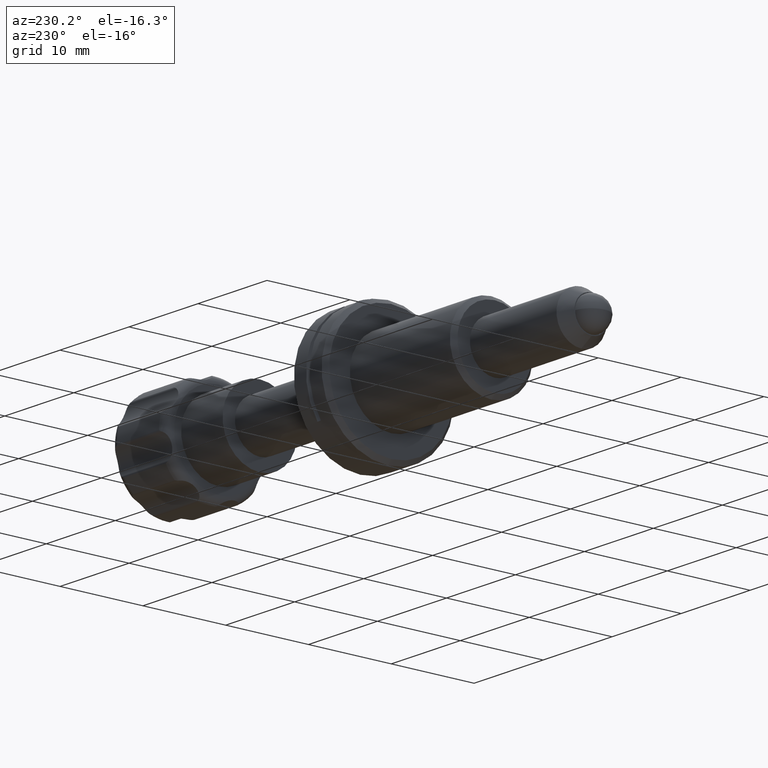
[diagram: clean part render]
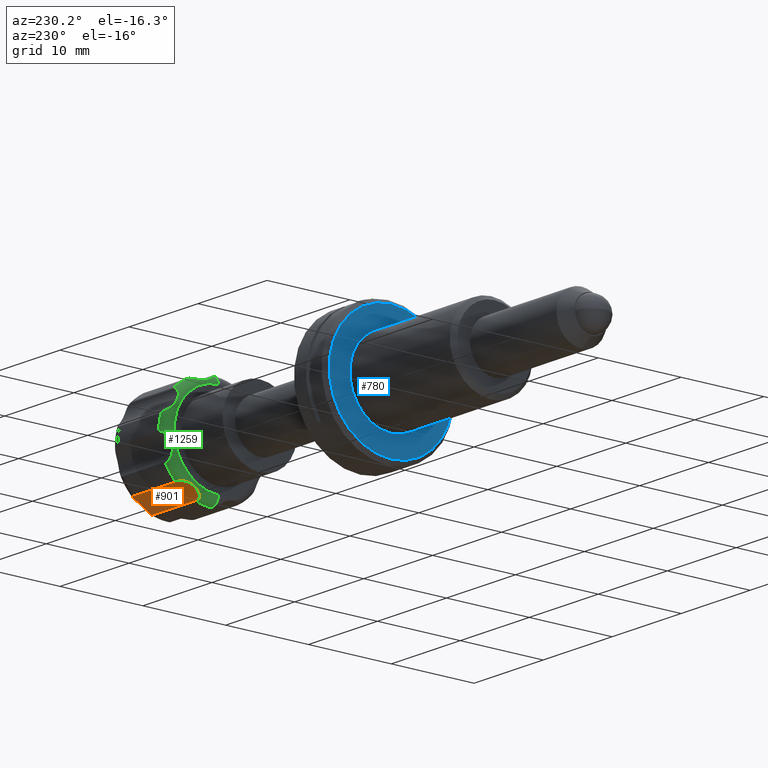
[diagram: same view with three faces highlighted in distinct colors, each labeled with its STEP entity id]
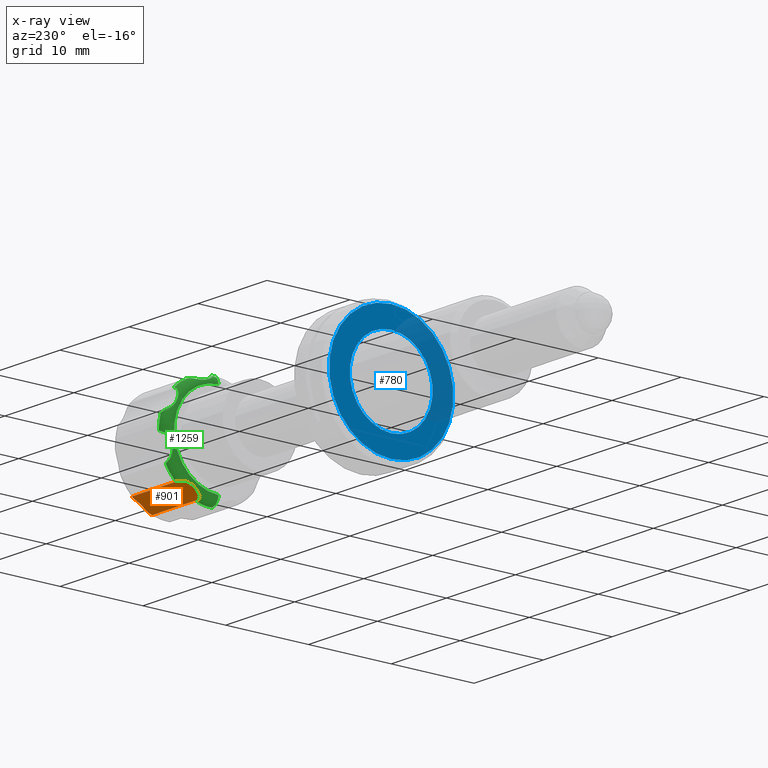
[diagram: x-ray of the same camera — body ghosted, the three highlighted faces saturated]
A machine part, auxiliary view with three faces highlighted in distinct colors.
The next image is the same camera in x-ray (body ghosted, the three faces saturated) — at least one of them is partly hidden behind the body in this view.
Their STEP definitions:

[orange] entity #901 — the highlighted cylindrical surface (edge-blend (fillet) strip) has radius 2.75 mm, axis along (-1, 0, 0).
#26 = DIRECTION ( 'NONE',  ( -1.000000000000000000, 3.443357432102106769E-17, 2.211074569426361915E-16 ) ) ;
#103 = CARTESIAN_POINT ( 'NONE',  ( 34.96648861014485732, 2.760489039169645942, -5.045806486406156921 ) ) ;
#155 = CARTESIAN_POINT ( 'NONE',  ( 27.44775316104480822, 1.960155811109879576, -5.834174106017194106 ) ) ;
#238 = CARTESIAN_POINT ( 'NONE',  ( 35.09076659436070145, 4.245051004761054791, -4.611220385363010266 ) ) ;
#371 = CARTESIAN_POINT ( 'NONE',  ( 34.91232791550485359, 3.476360052626619623, -4.719177914845401389 ) ) ;
#441 = CARTESIAN_POINT ( 'NONE',  ( 27.65267950003190833, 4.245051004748676249, -4.611220385363024477 ) ) ;
#625 = AXIS2_PLACEMENT_3D ( 'NONE', #3323, #26, #961 ) ;
#702 = CARTESIAN_POINT ( 'NONE',  ( 27.13925720084247217, 2.651343011768366065, -5.119767319724040533 ) ) ;
#708 = CARTESIAN_POINT ( 'NONE',  ( 34.84178795753368973, 2.171823632941034976, -5.555694386223704484 ) ) ;
#709 = ORIENTED_EDGE ( 'NONE', *, *, #2527, .T. ) ;
#717 = CARTESIAN_POINT ( 'NONE',  ( 27.25821204246625840, 3.725460657661700647, -4.658701631778269459 ) ) ;
#723 = CARTESIAN_POINT ( 'NONE',  ( 34.96078662551391858, 2.651876560196805510, -5.119382259756514841 ) ) ;
#757 = CARTESIAN_POINT ( 'NONE',  ( 27.18767208449510164, 2.348747932921175785, -5.370205075698811115 ) ) ;
#871 = EDGE_CURVE ( 'NONE', #3191, #1717, #1156, .T. ) ;
#901 = ADVANCED_FACE ( 'NONE', ( #2391 ), #1562, .F. ) ;
#961 = DIRECTION ( 'NONE',  ( 0.000000000000000000, 0.000000000000000000, -1.000000000000000000 ) ) ;
#1008 = CARTESIAN_POINT ( 'NONE',  ( 27.16648532775298719, 2.444740507822988906, -5.282554292036650168 ) ) ;
#1156 = LINE ( 'NONE', #238, #3502 ) ;
#1304 = CARTESIAN_POINT ( 'NONE',  ( 27.30701591892978186, 2.093016884795801058, -5.651634992600676810 ) ) ;
#1350 = VERTEX_POINT ( 'NONE', #3297 ) ;
#1429 = DIRECTION ( 'NONE',  ( -1.000000000000000000, 3.443357432102106769E-17, 2.211074569426361915E-16 ) ) ;
#1562 = CYLINDRICAL_SURFACE ( 'NONE', #625, 2.750000000000013767 ) ;
#1577 = CARTESIAN_POINT ( 'NONE',  ( 27.30785379086186282, 3.849523175336078573, -4.638220352332449004 ) ) ;
#1638 = CARTESIAN_POINT ( 'NONE',  ( 34.44732049996802914, 1.870908493798601580, -5.981932203154578076 ) ) ;
#1717 = VERTEX_POINT ( 'NONE', #3347 ) ;
#1849 = CARTESIAN_POINT ( 'NONE',  ( 34.65224683895515057, 4.072465080357222433, -4.614631780805522610 ) ) ;
#1903 = CARTESIAN_POINT ( 'NONE',  ( 34.93359056029717635, 2.445116214553703315, -5.282223083541683017 ) ) ;
#1905 = ORIENTED_EDGE ( 'NONE', *, *, #3229, .T. ) ;
#1927 = CARTESIAN_POINT ( 'NONE',  ( 34.65197480839377420, 1.960071200793009227, -5.834352248187342660 ) ) ;
#1941 = CARTESIAN_POINT ( 'NONE',  ( 27.54094784483719849, 1.906802449295059709, -5.920019630092014040 ) ) ;
#1957 = CARTESIAN_POINT ( 'NONE',  ( 27.44802519160616683, 4.072661661160484670, -4.614647577206762108 ) ) ;
#2055 = DIRECTION ( 'NONE',  ( 1.000000000000000000, -3.443357432102106769E-17, -2.211074569426361915E-16 ) ) ;
#2174 = CARTESIAN_POINT ( 'NONE',  ( 34.93351467224697160, 3.352455959862667534, -4.758484531453970767 ) ) ;
#2207 = CARTESIAN_POINT ( 'NONE',  ( 27.16640943970277533, 3.351981271526712547, -4.758644298779659110 ) ) ;
#2267 = CARTESIAN_POINT ( 'NONE',  ( 27.65267950003190833, 4.245051004748676249, -4.611220385363024477 ) ) ;
#2288 = VECTOR ( 'NONE', #1429, 1000.000000000000000 ) ;
#2391 = FACE_OUTER_BOUND ( 'NONE', #3586, .T. ) ;
#2432 = CARTESIAN_POINT ( 'NONE',  ( 34.96074279915748662, 3.108177054462100575, -4.856014062199833781 ) ) ;
#2487 = CARTESIAN_POINT ( 'NONE',  ( 34.91196777807297025, 2.347624190096103014, -5.371318612363777056 ) ) ;
#2503 = CARTESIAN_POINT ( 'NONE',  ( 27.65267950005353015, 1.870908493791660021, -5.981932203166550721 ) ) ;
#2527 = EDGE_CURVE ( 'NONE', #1350, #3191, #2596, .T. ) ;
#2585 = LINE ( 'NONE', #3760, #2288 ) ;
#2586 = ORIENTED_EDGE ( 'NONE', *, *, #3114, .T. ) ;
#2596 = B_SPLINE_CURVE_WITH_KNOTS ( 'NONE', 3,
 ( #2503, #1941, #155, #1304, #3155, #757, #1008, #702, #2818, #3715, #3670, #2207, #2850, #717, #1577, #1957, #3396, #441 ),
 .UNSPECIFIED., .F., .F.,
 ( 4, 2, 2, 2, 2, 2, 2, 2, 4 ),
 ( 0.0004183084499995081361, 0.0008152739970678751346, 0.001212239544136242296, 0.001609205091204609240, 0.002006170638272976401, 0.002403136185341343562, 0.002800101732409710290, 0.003197067279478077451, 0.003594032826546444612 ),
 .UNSPECIFIED. ) ;
#2611 = VERTEX_POINT ( 'NONE', #3830 ) ;
#2785 = CARTESIAN_POINT ( 'NONE',  ( 34.84195638925874761, 3.725120326479178345, -4.658738368621081705 ) ) ;
#2802 = CARTESIAN_POINT ( 'NONE',  ( 34.79214620913809597, 2.092055065801754488, -5.652895038464259336 ) ) ;
#2818 = CARTESIAN_POINT ( 'NONE',  ( 27.13345850479822374, 2.761933839984418881, -5.044877678075256000 ) ) ;
#2850 = CARTESIAN_POINT ( 'NONE',  ( 27.18803222192699209, 3.477886275079056233, -4.718761493344050706 ) ) ;
#3055 = CARTESIAN_POINT ( 'NONE',  ( 34.79298408107016627, 3.847951034111268154, -4.638423289083344336 ) ) ;
#3114 = EDGE_CURVE ( 'NONE', #1717, #2611, #3381, .T. ) ;
#3155 = CARTESIAN_POINT ( 'NONE',  ( 27.25804361074121118, 2.172025613571428870, -5.555418019195334622 ) ) ;
#3183 = CARTESIAN_POINT ( 'NONE',  ( 34.56025345591322662, 1.907188368897932529, -5.919353967162067853 ) ) ;
#3191 = VERTEX_POINT ( 'NONE', #2267 ) ;
#3229 = EDGE_CURVE ( 'NONE', #2611, #1350, #2585, .T. ) ;
#3297 = CARTESIAN_POINT ( 'NONE',  ( 27.65267950005353015, 1.870908493791660021, -5.981932203166550721 ) ) ;
#3323 = CARTESIAN_POINT ( 'NONE',  ( 35.09076659436069434, 4.249999999999955591, -7.361215932167811893 ) ) ;
#3342 = CARTESIAN_POINT ( 'NONE',  ( 34.44732049994642864, 4.245051004762527391, -4.611220385363001384 ) ) ;
#3347 = CARTESIAN_POINT ( 'NONE',  ( 34.44732049994642864, 4.245051004762527391, -4.611220385363001384 ) ) ;
#3363 = CARTESIAN_POINT ( 'NONE',  ( 34.55905215516276030, 4.173486165914622070, -4.611349176133995975 ) ) ;
#3381 = B_SPLINE_CURVE_WITH_KNOTS ( 'NONE', 3,
 ( #3342, #3363, #1849, #3055, #2785, #371, #2174, #2432, #3625, #103, #723, #1903, #2487, #708, #2802, #1927, #3183, #1638 ),
 .UNSPECIFIED., .F., .F.,
 ( 4, 2, 2, 2, 2, 2, 2, 2, 4 ),
 ( 0.0004183084499995095456, 0.0008152739970678770862, 0.001212239544136244464, 0.001609205091204611842, 0.002006170638272979437, 0.002403136185341347032, 0.002800101732409714193, 0.003197067279478081787, 0.003594032826546449382 ),
 .UNSPECIFIED. ) ;
#3396 = CARTESIAN_POINT ( 'NONE',  ( 27.53974654408671441, 4.172716725105478197, -4.611350560848930691 ) ) ;
#3502 = VECTOR ( 'NONE', #2055, 1000.000000000000000 ) ;
#3586 = EDGE_LOOP ( 'NONE', ( #709, #3589, #2586, #1905 ) ) ;
#3589 = ORIENTED_EDGE ( 'NONE', *, *, #871, .T. ) ;
#3625 = CARTESIAN_POINT ( 'NONE',  ( 34.96654149520173149, 2.988025308205912278, -4.914343708036101432 ) ) ;
#3670 = CARTESIAN_POINT ( 'NONE',  ( 27.13921337448603310, 3.107576808534020074, -4.856283598709246974 ) ) ;
#3715 = CARTESIAN_POINT ( 'NONE',  ( 27.13351138985509436, 2.989552080223103037, -4.913556877992548699 ) ) ;
#3760 = CARTESIAN_POINT ( 'NONE',  ( 35.09076659436069434, 1.870908493792398763, -5.981932203165280626 ) ) ;
#3830 = CARTESIAN_POINT ( 'NONE',  ( 34.44732049996802914, 1.870908493798601580, -5.981932203154578076 ) ) ;

[blue] entity #780 — the highlighted planar face has unit normal (1, 0, -0).
#274 = PLANE ( 'NONE',  #558 ) ;
#382 = CARTESIAN_POINT ( 'NONE',  ( 2.000000000000002665, -9.491012693391985815E-16, -7.499999999999997335 ) ) ;
#389 = ORIENTED_EDGE ( 'NONE', *, *, #3301, .F. ) ;
#509 = DIRECTION ( 'NONE',  ( 0.000000000000000000, 0.000000000000000000, -1.000000000000000000 ) ) ;
#540 = DIRECTION ( 'NONE',  ( 0.000000000000000000, 0.000000000000000000, 1.000000000000000000 ) ) ;
#558 = AXIS2_PLACEMENT_3D ( 'NONE', #1738, #2080, #540 ) ;
#593 = AXIS2_PLACEMENT_3D ( 'NONE', #1214, #1152, #1789 ) ;
#599 = CARTESIAN_POINT ( 'NONE',  ( 2.000000000000005329, -6.123233995736766282E-16, 5.000000000000000000 ) ) ;
#771 = ORIENTED_EDGE ( 'NONE', *, *, #2644, .F. ) ;
#780 = ADVANCED_FACE ( 'NONE', ( #3544, #2031 ), #274, .F. ) ;
#785 = ORIENTED_EDGE ( 'NONE', *, *, #1708, .T. ) ;
#925 = AXIS2_PLACEMENT_3D ( 'NONE', #3764, #1930, #1314 ) ;
#958 = CARTESIAN_POINT ( 'NONE',  ( 2.000000000000005329, 0.000000000000000000, -5.000000000000000000 ) ) ;
#966 = DIRECTION ( 'NONE',  ( -1.000000000000000000, -0.000000000000000000, -0.000000000000000000 ) ) ;
#1056 = AXIS2_PLACEMENT_3D ( 'NONE', #2001, #2327, #509 ) ;
#1152 = DIRECTION ( 'NONE',  ( -1.000000000000000000, 0.000000000000000000, 0.000000000000000000 ) ) ;
#1214 = CARTESIAN_POINT ( 'NONE',  ( 2.000000000000005329, 0.000000000000000000, 0.000000000000000000 ) ) ;
#1314 = DIRECTION ( 'NONE',  ( 0.000000000000000000, 0.000000000000000000, 1.000000000000000000 ) ) ;
#1440 = EDGE_LOOP ( 'NONE', ( #771, #389 ) ) ;
#1589 = CARTESIAN_POINT ( 'NONE',  ( 2.000000000000002665, 0.000000000000000000, 7.499999999999997335 ) ) ;
#1639 = VERTEX_POINT ( 'NONE', #1589 ) ;
#1708 = EDGE_CURVE ( 'NONE', #2460, #1639, #2117, .T. ) ;
#1738 = CARTESIAN_POINT ( 'NONE',  ( 2.000000000000002665, -7.999999999999998224, 0.000000000000000000 ) ) ;
#1775 = EDGE_CURVE ( 'NONE', #1639, #2460, #2616, .T. ) ;
#1783 = CIRCLE ( 'NONE', #593, 5.000000000000000000 ) ;
#1789 = DIRECTION ( 'NONE',  ( 0.000000000000000000, 0.000000000000000000, -1.000000000000000000 ) ) ;
#1930 = DIRECTION ( 'NONE',  ( -1.000000000000000000, -0.000000000000000000, -0.000000000000000000 ) ) ;
#2001 = CARTESIAN_POINT ( 'NONE',  ( 2.000000000000005329, 0.000000000000000000, 0.000000000000000000 ) ) ;
#2031 = FACE_BOUND ( 'NONE', #1440, .T. ) ;
#2080 = DIRECTION ( 'NONE',  ( 1.000000000000000000, 0.000000000000000000, -0.000000000000000000 ) ) ;
#2117 = CIRCLE ( 'NONE', #3294, 7.499999999999997335 ) ;
#2162 = DIRECTION ( 'NONE',  ( 0.000000000000000000, 0.000000000000000000, 1.000000000000000000 ) ) ;
#2327 = DIRECTION ( 'NONE',  ( -1.000000000000000000, 0.000000000000000000, 0.000000000000000000 ) ) ;
#2460 = VERTEX_POINT ( 'NONE', #382 ) ;
#2616 = CIRCLE ( 'NONE', #925, 7.499999999999997335 ) ;
#2644 = EDGE_CURVE ( 'NONE', #3441, #3344, #2939, .T. ) ;
#2733 = CARTESIAN_POINT ( 'NONE',  ( 2.000000000000002665, 0.000000000000000000, 0.000000000000000000 ) ) ;
#2939 = CIRCLE ( 'NONE', #1056, 5.000000000000000000 ) ;
#2980 = ORIENTED_EDGE ( 'NONE', *, *, #1775, .T. ) ;
#3193 = EDGE_LOOP ( 'NONE', ( #2980, #785 ) ) ;
#3294 = AXIS2_PLACEMENT_3D ( 'NONE', #2733, #966, #2162 ) ;
#3301 = EDGE_CURVE ( 'NONE', #3344, #3441, #1783, .T. ) ;
#3344 = VERTEX_POINT ( 'NONE', #599 ) ;
#3441 = VERTEX_POINT ( 'NONE', #958 ) ;
#3544 = FACE_OUTER_BOUND ( 'NONE', #3193, .T. ) ;
#3764 = CARTESIAN_POINT ( 'NONE',  ( 2.000000000000002665, 0.000000000000000000, 0.000000000000000000 ) ) ;

[green] entity #1259 — the highlighted toroidal blend (fillet) surface has major radius 5.35 mm and minor (blend) radius 1 mm.
#20 = EDGE_CURVE ( 'NONE', #2999, #3191, #2047, .T. ) ;
#28 = CARTESIAN_POINT ( 'NONE',  ( 28.05000000000000426, 5.523849146877994443, -3.132026596715875577 ) ) ;
#30 = VERTEX_POINT ( 'NONE', #1285 ) ;
#47 = CIRCLE ( 'NONE', #3410, 1.000000000000000000 ) ;
#81 = DIRECTION ( 'NONE',  ( 1.000000000000000000, -3.443357432102106769E-17, -2.211074569426361915E-16 ) ) ;
#104 = VERTEX_POINT ( 'NONE', #1085 ) ;
#106 = ORIENTED_EDGE ( 'NONE', *, *, #223, .F. ) ;
#138 = EDGE_LOOP ( 'NONE', ( #2144, #3165, #2353, #539, #3481, #1416, #106, #2411, #563, #2083, #3447, #3101, #2215, #3036, #3060, #1856, #2677, #535, #2719, #2023, #1917 ) ) ;
#142 = CARTESIAN_POINT ( 'NONE',  ( 27.21711738077696907, 0.7435788127513307533, 5.870884537516466217 ) ) ;
#144 = DIRECTION ( 'NONE',  ( 1.000000000000000000, -3.443357432102106769E-17, -2.211074569426361915E-16 ) ) ;
#153 = VERTEX_POINT ( 'NONE', #612 ) ;
#155 = CARTESIAN_POINT ( 'NONE',  ( 27.44775316104480822, 1.960155811109879576, -5.834174106017194106 ) ) ;
#158 = CARTESIAN_POINT ( 'NONE',  ( 27.14278187211767346, 1.819450221011462476, 5.480029573062281223 ) ) ;
#214 = CARTESIAN_POINT ( 'NONE',  ( 27.25804361074120408, 5.555418019195321300, 2.172025613571454183 ) ) ;
#223 = EDGE_CURVE ( 'NONE', #153, #3287, #3592, .T. ) ;
#235 = CARTESIAN_POINT ( 'NONE',  ( 27.16648532775298364, 5.282554292036632404, 2.444740507823019104 ) ) ;
#243 = CARTESIAN_POINT ( 'NONE',  ( 27.16640943970277533, 5.735078340428652055, -0.9946609654149236590 ) ) ;
#266 = CARTESIAN_POINT ( 'NONE',  ( 27.43246005745976390, 2.722433310230615966, 5.507603289012110714 ) ) ;
#283 = CARTESIAN_POINT ( 'NONE',  ( 28.05000000000000426, 0.04950997535461460625, 6.349806986227284789 ) ) ;
#298 = CARTESIAN_POINT ( 'NONE',  ( 27.25821204246627261, 5.928498009431542926, -0.6599010212789346852 ) ) ;
#312 = VERTEX_POINT ( 'NONE', #3610 ) ;
#341 = CARTESIAN_POINT ( 'NONE',  ( 27.78310272331335185, 4.328587912350966960, -4.611070049207594224 ) ) ;
#343 = CARTESIAN_POINT ( 'NONE',  ( 27.65267950003194741, 4.611220385363012930, 4.245051004748718881 ) ) ;
#345 = B_SPLINE_CURVE_WITH_KNOTS ( 'NONE', 3,
 ( #1756, #2310, #3182, #494, #214, #2915, #235, #2626, #1132, #2331, #3517, #2026, #3219, #1734, #1845, #2405, #3278, #343 ),
 .UNSPECIFIED., .F., .F.,
 ( 4, 2, 2, 2, 2, 2, 2, 2, 4 ),
 ( 0.0004183084499995101419, 0.0008152739970678826156, 0.001212239544136255089, 0.001609205091204627671, 0.002006170638273000253, 0.002403136185341372619, 0.002800101732409744984, 0.003197067279478117349, 0.003594032826546489715 ),
 .UNSPECIFIED. ) ;
#414 = CARTESIAN_POINT ( 'NONE',  ( 28.05000000000000426, 3.132026596715852484, 5.523849146878006877 ) ) ;
#419 = CARTESIAN_POINT ( 'NONE',  ( 27.12929692921223079, 1.442831556967509865, 5.559652820609849222 ) ) ;
#441 = CARTESIAN_POINT ( 'NONE',  ( 27.65267950003190833, 4.245051004748676249, -4.611220385363024477 ) ) ;
#476 = EDGE_CURVE ( 'NONE', #153, #2152, #3752, .T. ) ;
#494 = CARTESIAN_POINT ( 'NONE',  ( 27.30701591892978541, 5.651634992600664376, 2.093016884795825039 ) ) ;
#498 = CARTESIAN_POINT ( 'NONE',  ( 28.05000000000000426, 6.349806986227291006, -0.04950997535463630417 ) ) ;
#502 = EDGE_CURVE ( 'NONE', #1350, #3275, #1103, .T. ) ;
#512 = DIRECTION ( 'NONE',  ( 1.000000000000000000, -3.443357432102106769E-17, -2.211074569426361915E-16 ) ) ;
#535 = ORIENTED_EDGE ( 'NONE', *, *, #20, .T. ) ;
#537 = DIRECTION ( 'NONE',  ( -1.000000000000000000, 3.443357432102106769E-17, 2.211074569426361915E-16 ) ) ;
#539 = ORIENTED_EDGE ( 'NONE', *, *, #2311, .F. ) ;
#563 = ORIENTED_EDGE ( 'NONE', *, *, #876, .F. ) ;
#569 = CARTESIAN_POINT ( 'NONE',  ( 27.91540443695955531, 6.093615518275867338, 1.762172362862785002 ) ) ;
#574 = EDGE_CURVE ( 'NONE', #1840, #1779, #589, .T. ) ;
#575 = CARTESIAN_POINT ( 'NONE',  ( 27.65267950005353015, 5.552796908396834930, -2.906932742517639667 ) ) ;
#589 = B_SPLINE_CURVE_WITH_KNOTS ( 'NONE', 3,
 ( #3789, #1121, #3253, #569, #2039, #2964 ),
 .UNSPECIFIED., .F., .F.,
 ( 4, 2, 4 ),
 ( 7.018543049030571492E-16, 0.0002289455096684126824, 0.0004578910193361235064 ),
 .UNSPECIFIED. ) ;
#598 = CARTESIAN_POINT ( 'NONE',  ( 28.05000000000000426, -3.443357432102044523E-17, -2.211074569426205868E-16 ) ) ;
#607 = CARTESIAN_POINT ( 'NONE',  ( 27.18803222192699565, 5.795905220049570872, -0.8774312814414834127 ) ) ;
#612 = CARTESIAN_POINT ( 'NONE',  ( 27.65267950005353370, 2.906932742517620127, 5.552796908396845588 ) ) ;
#630 = AXIS2_PLACEMENT_3D ( 'NONE', #2003, #512, #3799 ) ;
#631 = B_SPLINE_CURVE_WITH_KNOTS ( 'NONE', 3,
 ( #2240, #1975, #2221, #3172, #1914, #1100, #2300, #3412, #3289, #2397, #1164, #243, #607, #298, #1766, #3254, #891, #1122 ),
 .UNSPECIFIED., .F., .F.,
 ( 4, 2, 2, 2, 2, 2, 2, 2, 4 ),
 ( 0.0004183084499995163761, 0.0008152739970678869524, 0.001212239544136257475, 0.001609205091204628105, 0.002006170638272998519, 0.002403136185341369149, 0.002800101732409739780, 0.003197067279478110410, 0.003594032826546481041 ),
 .UNSPECIFIED. ) ;
#671 = VERTEX_POINT ( 'NONE', #3288 ) ;
#692 = CIRCLE ( 'NONE', #1686, 6.350000000000035172 ) ;
#702 = CARTESIAN_POINT ( 'NONE',  ( 27.13925720084247217, 2.651343011768366065, -5.119767319724040533 ) ) ;
#717 = CARTESIAN_POINT ( 'NONE',  ( 27.25821204246625840, 3.725460657661700647, -4.658701631778269459 ) ) ;
#718 = CARTESIAN_POINT ( 'NONE',  ( 27.48801159741863032, 0.3336342161466097078, 6.187884622797827028 ) ) ;
#757 = CARTESIAN_POINT ( 'NONE',  ( 27.18767208449510164, 2.348747932921175785, -5.370205075698811115 ) ) ;
#801 = FACE_OUTER_BOUND ( 'NONE', #138, .T. ) ;
#802 = CARTESIAN_POINT ( 'NONE',  ( 27.98344650321633509, 5.542269083012454800, -3.099539979709309279 ) ) ;
#824 = DIRECTION ( 'NONE',  ( 1.000000000000000000, -3.443357432102106769E-17, -2.211074569426361915E-16 ) ) ;
#862 = B_SPLINE_CURVE_WITH_KNOTS ( 'NONE', 3,
 ( #1921, #2852, #158, #419, #3736, #1634, #142, #2208, #718, #3416 ),
 .UNSPECIFIED., .F., .F.,
 ( 4, 2, 2, 2, 4 ),
 ( 0.001278765914478705934, 0.001857582642495640224, 0.002436399370512574297, 0.003015216098529508587, 0.003594032826546442877 ),
 .UNSPECIFIED. ) ;
#876 = EDGE_CURVE ( 'NONE', #30, #2152, #692, .T. ) ;
#891 = CARTESIAN_POINT ( 'NONE',  ( 27.53974654408673572, 6.211273544297285731, -0.3101609597120337791 ) ) ;
#893 = EDGE_CURVE ( 'NONE', #671, #3136, #2883, .T. ) ;
#905 = CARTESIAN_POINT ( 'NONE',  ( 27.78310272331338027, 4.611070049207583565, 4.328587912350977618 ) ) ;
#912 = AXIS2_PLACEMENT_3D ( 'NONE', #2407, #2351, #1736 ) ;
#930 = CIRCLE ( 'NONE', #2308, 6.350000000000035172 ) ;
#1008 = CARTESIAN_POINT ( 'NONE',  ( 27.16648532775298719, 2.444740507822988906, -5.282554292036650168 ) ) ;
#1022 = CARTESIAN_POINT ( 'NONE',  ( 27.98344650321638838, 3.099539979709197812, 5.542269083012517861 ) ) ;
#1067 = AXIS2_PLACEMENT_3D ( 'NONE', #3418, #144, #2544 ) ;
#1085 = CARTESIAN_POINT ( 'NONE',  ( 28.05000000000000426, -7.790378095622344927E-16, -6.350000000000032507 ) ) ;
#1093 = DIRECTION ( 'NONE',  ( 0.000000000000000000, -5.204170427930324987E-18, 1.000000000000000000 ) ) ;
#1100 = CARTESIAN_POINT ( 'NONE',  ( 27.18767208449508743, 5.458124016055496242, -2.136492834722574230 ) ) ;
#1103 = B_SPLINE_CURVE_WITH_KNOTS ( 'NONE', 3,
 ( #3411, #1935, #3170, #3137, #2576, #3749 ),
 .UNSPECIFIED., .F., .F.,
 ( 4, 2, 4 ),
 ( 7.016914914755299062E-16, 0.0002289455096684106495, 0.0004578910193361196033 ),
 .UNSPECIFIED. ) ;
#1121 = CARTESIAN_POINT ( 'NONE',  ( 27.71790206154979330, 6.018073228704816202, 1.849955651774329191 ) ) ;
#1122 = CARTESIAN_POINT ( 'NONE',  ( 27.65267950003192965, 6.262329555976417161, -0.2589208520952713255 ) ) ;
#1132 = CARTESIAN_POINT ( 'NONE',  ( 27.13345850479823085, 5.044877678075237348, 2.761933839984454409 ) ) ;
#1151 = DIRECTION ( 'NONE',  ( 0.000000000000000000, -5.204170427930324216E-18, 1.000000000000000000 ) ) ;
#1164 = CARTESIAN_POINT ( 'NONE',  ( 27.13921337448603310, 5.631299698384780505, -1.236522429639835607 ) ) ;
#1174 = CARTESIAN_POINT ( 'NONE',  ( 27.78310272331335895, 0.1997450345353581624, 6.321292766106388683 ) ) ;
#1177 = EDGE_CURVE ( 'NONE', #2999, #2899, #2638, .T. ) ;
#1183 = EDGE_CURVE ( 'NONE', #671, #1779, #2764, .T. ) ;
#1217 = CARTESIAN_POINT ( 'NONE',  ( 27.91527785667135930, 4.578037157011457303, 4.401112438242543057 ) ) ;
#1259 = ADVANCED_FACE ( 'NONE', ( #801 ), #2326, .T. ) ;
#1285 = CARTESIAN_POINT ( 'NONE',  ( 28.05000000000000426, 4.525000418496658128, 4.454982739877389797 ) ) ;
#1304 = CARTESIAN_POINT ( 'NONE',  ( 27.30701591892978186, 2.093016884795801058, -5.651634992600676810 ) ) ;
#1328 = B_SPLINE_CURVE_WITH_KNOTS ( 'NONE', 3,
 ( #3547, #1217, #905, #2358 ),
 .UNSPECIFIED., .F., .F.,
 ( 4, 4 ),
 ( -6.324575472142976982E-06, 0.0004571225949801552236 ),
 .UNSPECIFIED. ) ;
#1335 = CARTESIAN_POINT ( 'NONE',  ( 27.91540443695955176, 3.062792827516637395, 5.554880882316248325 ) ) ;
#1350 = VERTEX_POINT ( 'NONE', #3297 ) ;
#1363 = CARTESIAN_POINT ( 'NONE',  ( 28.05000000000000426, -3.443357432102044523E-17, -2.211074569426205868E-16 ) ) ;
#1388 = CARTESIAN_POINT ( 'NONE',  ( 27.65267950003192965, 6.262329555976417161, -0.2589208520952713255 ) ) ;
#1391 = DIRECTION ( 'NONE',  ( 1.000000000000000000, -3.443357432102106769E-17, -2.211074569426361915E-16 ) ) ;
#1406 = CARTESIAN_POINT ( 'NONE',  ( 27.71790206154980041, 5.563536575958380581, -2.947304203430380021 ) ) ;
#1410 = CARTESIAN_POINT ( 'NONE',  ( 27.78310272331336961, 6.321292766106383354, -0.1997450345353829759 ) ) ;
#1416 = ORIENTED_EDGE ( 'NONE', *, *, #3553, .F. ) ;
#1434 = CIRCLE ( 'NONE', #3620, 6.350000000000035172 ) ;
#1540 = EDGE_CURVE ( 'NONE', #3668, #3136, #631, .T. ) ;
#1577 = CARTESIAN_POINT ( 'NONE',  ( 27.30785379086186282, 3.849523175336078573, -4.638220352332449004 ) ) ;
#1618 = DIRECTION ( 'NONE',  ( 0.000000000000000000, -5.204170427930324987E-18, 1.000000000000000000 ) ) ;
#1634 = CARTESIAN_POINT ( 'NONE',  ( 27.17831900489571240, 0.9096742326570047554, 5.774276707927026742 ) ) ;
#1686 = AXIS2_PLACEMENT_3D ( 'NONE', #2960, #1391, #1093 ) ;
#1701 = CARTESIAN_POINT ( 'NONE',  ( 27.91527785667079442, 6.349217568092567987, -0.1251046684000458875 ) ) ;
#1714 = CARTESIAN_POINT ( 'NONE',  ( 27.91540443695955531, 5.554880882316239443, -3.062792827516652938 ) ) ;
#1734 = CARTESIAN_POINT ( 'NONE',  ( 27.25821204246627971, 4.658701631778251695, 3.725460657661748165 ) ) ;
#1736 = DIRECTION ( 'NONE',  ( -1.000000000000000000, 3.443357432102104304E-17, 0.000000000000000000 ) ) ;
#1743 = VERTEX_POINT ( 'NONE', #2551 ) ;
#1756 = CARTESIAN_POINT ( 'NONE',  ( 27.65267950005353015, 5.981932203166547168, 1.870908493791679783 ) ) ;
#1766 = CARTESIAN_POINT ( 'NONE',  ( 27.30785379086186992, 6.001741005386657335, -0.5576931221567894559 ) ) ;
#1779 = VERTEX_POINT ( 'NONE', #3444 ) ;
#1840 = VERTEX_POINT ( 'NONE', #2514 ) ;
#1845 = CARTESIAN_POINT ( 'NONE',  ( 27.30785379086187348, 4.638220352332433016, 3.849523175336128755 ) ) ;
#1856 = ORIENTED_EDGE ( 'NONE', *, *, #2406, .T. ) ;
#1894 = CARTESIAN_POINT ( 'NONE',  ( 27.71790206154980041, 2.947304203430360925, 5.563536575958396568 ) ) ;
#1914 = CARTESIAN_POINT ( 'NONE',  ( 27.25804361074120408, 5.464127793966190971, -2.392419713431709560 ) ) ;
#1917 = ORIENTED_EDGE ( 'NONE', *, *, #2429, .F. ) ;
#1921 = CARTESIAN_POINT ( 'NONE',  ( 27.20634740680450747, 2.199961883375890714, 5.460369523457118568 ) ) ;
#1926 = B_SPLINE_CURVE_WITH_KNOTS ( 'NONE', 3,
 ( #2604, #1406, #3780, #1714, #802, #1985 ),
 .UNSPECIFIED., .F., .F.,
 ( 4, 2, 4 ),
 ( 7.021945501177915729E-16, 0.0002289455096684166939, 0.0004578910193361312043 ),
 .UNSPECIFIED. ) ;
#1935 = CARTESIAN_POINT ( 'NONE',  ( 27.71790206154979685, 1.849955651774306542, -6.018073228704817978 ) ) ;
#1941 = CARTESIAN_POINT ( 'NONE',  ( 27.54094784483719849, 1.906802449295059709, -5.920019630092014040 ) ) ;
#1957 = CARTESIAN_POINT ( 'NONE',  ( 27.44802519160616683, 4.072661661160484670, -4.614647577206762108 ) ) ;
#1975 = CARTESIAN_POINT ( 'NONE',  ( 27.54094784483718783, 5.534398967475195441, -2.837773082915872713 ) ) ;
#1985 = CARTESIAN_POINT ( 'NONE',  ( 28.05000000000000426, 5.523849146877994443, -3.132026596715875577 ) ) ;
#2003 = CARTESIAN_POINT ( 'NONE',  ( 28.05000000000000426, -3.443357432102044523E-17, -2.211074569426205868E-16 ) ) ;
#2023 = ORIENTED_EDGE ( 'NONE', *, *, #502, .T. ) ;
#2026 = CARTESIAN_POINT ( 'NONE',  ( 27.16640943970278599, 4.758644298779637793, 3.351981271526757844 ) ) ;
#2039 = CARTESIAN_POINT ( 'NONE',  ( 27.98344650321707405, 6.110681789969580890, 1.727270313548682656 ) ) ;
#2047 = B_SPLINE_CURVE_WITH_KNOTS ( 'NONE', 3,
 ( #2481, #3636, #341, #3083 ),
 .UNSPECIFIED., .F., .F.,
 ( 4, 4 ),
 ( -6.324575472143034580E-06, 0.0004571225949801893760 ),
 .UNSPECIFIED. ) ;
#2083 = ORIENTED_EDGE ( 'NONE', *, *, #2982, .T. ) ;
#2108 = CARTESIAN_POINT ( 'NONE',  ( 27.28785711507793721, 2.476701131063359096, 5.471512627099222037 ) ) ;
#2126 = CIRCLE ( 'NONE', #3178, 5.350000000000028955 ) ;
#2144 = ORIENTED_EDGE ( 'NONE', *, *, #3520, .F. ) ;
#2152 = VERTEX_POINT ( 'NONE', #2782 ) ;
#2154 = DIRECTION ( 'NONE',  ( 0.000000000000000000, -5.204170427930324987E-18, 1.000000000000000000 ) ) ;
#2155 = DIRECTION ( 'NONE',  ( 0.000000000000000000, -1.172605094868048255E-16, -1.000000000000000000 ) ) ;
#2207 = CARTESIAN_POINT ( 'NONE',  ( 27.16640943970277533, 3.351981271526712547, -4.758644298779659110 ) ) ;
#2208 = CARTESIAN_POINT ( 'NONE',  ( 27.37084060918050454, 0.4538879434271571589, 6.078359334907817768 ) ) ;
#2215 = ORIENTED_EDGE ( 'NONE', *, *, #1183, .F. ) ;
#2221 = CARTESIAN_POINT ( 'NONE',  ( 27.44775316104480112, 5.511423539205735800, -2.739344606769690049 ) ) ;
#2240 = CARTESIAN_POINT ( 'NONE',  ( 27.65267950005353015, 5.552796908396834930, -2.906932742517639667 ) ) ;
#2267 = CARTESIAN_POINT ( 'NONE',  ( 27.65267950003190833, 4.245051004748676249, -4.611220385363024477 ) ) ;
#2300 = CARTESIAN_POINT ( 'NONE',  ( 27.16648532775298364, 5.464022553208299549, -2.006637370562113443 ) ) ;
#2305 = EDGE_CURVE ( 'NONE', #312, #1743, #2126, .T. ) ;
#2308 = AXIS2_PLACEMENT_3D ( 'NONE', #2662, #824, #3198 ) ;
#2310 = CARTESIAN_POINT ( 'NONE',  ( 27.54094784483719849, 5.920019630092006047, 1.906802449295081248 ) ) ;
#2311 = EDGE_CURVE ( 'NONE', #2731, #3390, #930, .T. ) ;
#2326 = TOROIDAL_SURFACE ( 'NONE', #630, 5.349999999999999645, 1.000000000000000000 ) ;
#2331 = CARTESIAN_POINT ( 'NONE',  ( 27.13351138985509436, 4.913556877992529159, 2.989552080223141672 ) ) ;
#2332 = CARTESIAN_POINT ( 'NONE',  ( 28.05000000000000071, 1.691273944614537506, -6.120628435403383527 ) ) ;
#2351 = DIRECTION ( 'NONE',  ( 3.443357432102106769E-17, 1.000000000000000000, 5.204170427930316513E-18 ) ) ;
#2353 = ORIENTED_EDGE ( 'NONE', *, *, #3312, .T. ) ;
#2358 = CARTESIAN_POINT ( 'NONE',  ( 27.65267950003194741, 4.611220385363012930, 4.245051004748718881 ) ) ;
#2390 = CARTESIAN_POINT ( 'NONE',  ( 27.20634740680450747, 2.199961883375890714, 5.460369523457118568 ) ) ;
#2397 = CARTESIAN_POINT ( 'NONE',  ( 27.13351138985509436, 5.588341936810444111, -1.360476839538198535 ) ) ;
#2405 = CARTESIAN_POINT ( 'NONE',  ( 27.44802519160619880, 4.614647577206747897, 4.072661661160531743 ) ) ;
#2406 = EDGE_CURVE ( 'NONE', #3668, #2899, #1926, .T. ) ;
#2407 = CARTESIAN_POINT ( 'NONE',  ( 28.05000000000000426, -6.227588611044783055E-17, 5.350000000000028955 ) ) ;
#2411 = ORIENTED_EDGE ( 'NONE', *, *, #476, .T. ) ;
#2424 = EDGE_CURVE ( 'NONE', #1840, #3239, #345, .T. ) ;
#2429 = EDGE_CURVE ( 'NONE', #104, #3275, #1434, .T. ) ;
#2449 = DIRECTION ( 'NONE',  ( -3.443357432102104304E-17, -1.000000000000000000, 1.172605094868048008E-16 ) ) ;
#2481 = CARTESIAN_POINT ( 'NONE',  ( 28.05000000000000426, 4.454982739877375586, -4.525000418496670562 ) ) ;
#2503 = CARTESIAN_POINT ( 'NONE',  ( 27.65267950005353015, 1.870908493791660021, -5.981932203166550721 ) ) ;
#2514 = CARTESIAN_POINT ( 'NONE',  ( 27.65267950005353015, 5.981932203166547168, 1.870908493791679783 ) ) ;
#2527 = EDGE_CURVE ( 'NONE', #1350, #3191, #2596, .T. ) ;
#2544 = DIRECTION ( 'NONE',  ( 0.000000000000000000, -5.204170427930324987E-18, 1.000000000000000000 ) ) ;
#2551 = CARTESIAN_POINT ( 'NONE',  ( 27.05000000000000426, -7.031907676583175340E-16, -5.349999999999999645 ) ) ;
#2576 = CARTESIAN_POINT ( 'NONE',  ( 27.98344650321696392, 1.727270313548482372, -6.110681789969628852 ) ) ;
#2596 = B_SPLINE_CURVE_WITH_KNOTS ( 'NONE', 3,
 ( #2503, #1941, #155, #1304, #3155, #757, #1008, #702, #2818, #3715, #3670, #2207, #2850, #717, #1577, #1957, #3396, #441 ),
 .UNSPECIFIED., .F., .F.,
 ( 4, 2, 2, 2, 2, 2, 2, 2, 4 ),
 ( 0.0004183084499995081361, 0.0008152739970678751346, 0.001212239544136242296, 0.001609205091204609240, 0.002006170638272976401, 0.002403136185341343562, 0.002800101732409710290, 0.003197067279478077451, 0.003594032826546444612 ),
 .UNSPECIFIED. ) ;
#2604 = CARTESIAN_POINT ( 'NONE',  ( 27.65267950005353015, 5.552796908396834930, -2.906932742517639667 ) ) ;
#2626 = CARTESIAN_POINT ( 'NONE',  ( 27.13925720084246862, 5.119767319724019217, 2.651343011768399816 ) ) ;
#2638 = CIRCLE ( 'NONE', #3807, 6.350000000000035172 ) ;
#2662 = CARTESIAN_POINT ( 'NONE',  ( 28.05000000000000426, -3.443357432102044523E-17, -2.211074569426205868E-16 ) ) ;
#2663 = CARTESIAN_POINT ( 'NONE',  ( 28.05000000000000426, 0.04950997535461460625, 6.349806986227284789 ) ) ;
#2675 = CARTESIAN_POINT ( 'NONE',  ( 27.20634740680450747, 2.199961883375890714, 5.460369523457118568 ) ) ;
#2677 = ORIENTED_EDGE ( 'NONE', *, *, #1177, .F. ) ;
#2702 = CARTESIAN_POINT ( 'NONE',  ( 27.65267950003194741, 4.611220385363012930, 4.245051004748718881 ) ) ;
#2719 = ORIENTED_EDGE ( 'NONE', *, *, #2527, .F. ) ;
#2725 = CARTESIAN_POINT ( 'NONE',  ( 27.65267950003192965, 6.262329555976417161, -0.2589208520952713255 ) ) ;
#2727 = CARTESIAN_POINT ( 'NONE',  ( 28.05000000000000426, 4.454982739877375586, -4.525000418496670562 ) ) ;
#2731 = VERTEX_POINT ( 'NONE', #283 ) ;
#2744 = CARTESIAN_POINT ( 'NONE',  ( 28.05000000000000426, -6.617773000754294700E-16, -5.350000000000028955 ) ) ;
#2749 = CARTESIAN_POINT ( 'NONE',  ( 27.65267950003191899, 0.2589208520952560599, 6.262329555976418938 ) ) ;
#2764 = CIRCLE ( 'NONE', #1067, 6.350000000000035172 ) ;
#2782 = CARTESIAN_POINT ( 'NONE',  ( 28.05000000000000426, 3.132026596715852484, 5.523849146878006877 ) ) ;
#2818 = CARTESIAN_POINT ( 'NONE',  ( 27.13345850479822374, 2.761933839984418881, -5.044877678075256000 ) ) ;
#2837 = CARTESIAN_POINT ( 'NONE',  ( 27.05000000000000426, -9.629649721936179265E-31, 3.851859888774471706E-30 ) ) ;
#2844 = CARTESIAN_POINT ( 'NONE',  ( 27.65267950005353370, 2.906932742517620127, 5.552796908396845588 ) ) ;
#2850 = CARTESIAN_POINT ( 'NONE',  ( 27.18803222192699209, 3.477886275079056233, -4.718761493344050706 ) ) ;
#2852 = CARTESIAN_POINT ( 'NONE',  ( 27.16175940958086699, 2.012476484495878015, 5.460369523456817475 ) ) ;
#2883 = B_SPLINE_CURVE_WITH_KNOTS ( 'NONE', 3,
 ( #498, #1701, #1410, #2725 ),
 .UNSPECIFIED., .F., .F.,
 ( 4, 4 ),
 ( -6.324575472140723874E-06, 0.0004571225949801715951 ),
 .UNSPECIFIED. ) ;
#2899 = VERTEX_POINT ( 'NONE', #28 ) ;
#2915 = CARTESIAN_POINT ( 'NONE',  ( 27.18767208449508743, 5.370205075698793351, 2.348747932921204207 ) ) ;
#2916 = CARTESIAN_POINT ( 'NONE',  ( 27.91527785667089034, 0.1251046684001948794, 6.349217568092567099 ) ) ;
#2949 = CARTESIAN_POINT ( 'NONE',  ( 27.53158544357996718, 2.831977943814486753, 5.532857337174628576 ) ) ;
#2960 = CARTESIAN_POINT ( 'NONE',  ( 28.05000000000000426, -3.443357432102044523E-17, -2.211074569426205868E-16 ) ) ;
#2964 = CARTESIAN_POINT ( 'NONE',  ( 28.05000000000000426, 6.120628435403379086, 1.691273944614555935 ) ) ;
#2982 = EDGE_CURVE ( 'NONE', #30, #3239, #1328, .T. ) ;
#2999 = VERTEX_POINT ( 'NONE', #2727 ) ;
#3036 = ORIENTED_EDGE ( 'NONE', *, *, #893, .T. ) ;
#3060 = ORIENTED_EDGE ( 'NONE', *, *, #1540, .F. ) ;
#3064 = VERTEX_POINT ( 'NONE', #2749 ) ;
#3083 = CARTESIAN_POINT ( 'NONE',  ( 27.65267950003190833, 4.245051004748676249, -4.611220385363024477 ) ) ;
#3101 = ORIENTED_EDGE ( 'NONE', *, *, #574, .T. ) ;
#3136 = VERTEX_POINT ( 'NONE', #1388 ) ;
#3137 = CARTESIAN_POINT ( 'NONE',  ( 27.91540443695954110, 1.762172362862751251, -6.093615518275877108 ) ) ;
#3155 = CARTESIAN_POINT ( 'NONE',  ( 27.25804361074121118, 2.172025613571428870, -5.555418019195334622 ) ) ;
#3165 = ORIENTED_EDGE ( 'NONE', *, *, #2305, .F. ) ;
#3170 = CARTESIAN_POINT ( 'NONE',  ( 27.78321307007621854, 1.823143063455580526, -6.047373725924085619 ) ) ;
#3172 = CARTESIAN_POINT ( 'NONE',  ( 27.30701591892978186, 5.476295860436176888, -2.516322995682048091 ) ) ;
#3178 = AXIS2_PLACEMENT_3D ( 'NONE', #2837, #537, #1151 ) ;
#3182 = CARTESIAN_POINT ( 'NONE',  ( 27.44775316104480822, 5.834174106017183448, 1.960155811109902224 ) ) ;
#3191 = VERTEX_POINT ( 'NONE', #2267 ) ;
#3198 = DIRECTION ( 'NONE',  ( 0.000000000000000000, -5.204170427930324987E-18, 1.000000000000000000 ) ) ;
#3219 = CARTESIAN_POINT ( 'NONE',  ( 27.18803222192700275, 4.718761493344031166, 3.477886275079102418 ) ) ;
#3239 = VERTEX_POINT ( 'NONE', #2702 ) ;
#3253 = CARTESIAN_POINT ( 'NONE',  ( 27.78321307007622565, 6.047373725924077625, 1.823143063455607171 ) ) ;
#3254 = CARTESIAN_POINT ( 'NONE',  ( 27.44802519160619170, 6.142855272714033532, -0.3832419165438981090 ) ) ;
#3256 = CARTESIAN_POINT ( 'NONE',  ( 27.23948922284073859, 2.339317920562194786, 5.460369523457341501 ) ) ;
#3275 = VERTEX_POINT ( 'NONE', #2332 ) ;
#3278 = CARTESIAN_POINT ( 'NONE',  ( 27.53974654408675349, 4.611350560848917368, 4.172716725105520830 ) ) ;
#3287 = VERTEX_POINT ( 'NONE', #2390 ) ;
#3288 = CARTESIAN_POINT ( 'NONE',  ( 28.05000000000000426, 6.349806986227291006, -0.04950997535463630417 ) ) ;
#3289 = CARTESIAN_POINT ( 'NONE',  ( 27.13345850479822374, 5.520249363865246117, -1.614285068982047822 ) ) ;
#3297 = CARTESIAN_POINT ( 'NONE',  ( 27.65267950005353015, 1.870908493791660021, -5.981932203166550721 ) ) ;
#3312 = EDGE_CURVE ( 'NONE', #312, #3390, #3712, .T. ) ;
#3358 = CARTESIAN_POINT ( 'NONE',  ( 28.05000000000000426, -6.748005653837819020E-17, 6.350000000000034284 ) ) ;
#3378 = EDGE_CURVE ( 'NONE', #2731, #3064, #3611, .T. ) ;
#3390 = VERTEX_POINT ( 'NONE', #3358 ) ;
#3396 = CARTESIAN_POINT ( 'NONE',  ( 27.53974654408671441, 4.172716725105478197, -4.611350560848930691 ) ) ;
#3410 = AXIS2_PLACEMENT_3D ( 'NONE', #2744, #2449, #2155 ) ;
#3411 = CARTESIAN_POINT ( 'NONE',  ( 27.65267950005353015, 1.870908493791660021, -5.981932203166550721 ) ) ;
#3412 = CARTESIAN_POINT ( 'NONE',  ( 27.13925720084247217, 5.495004812747124490, -1.745439567001140002 ) ) ;
#3416 = CARTESIAN_POINT ( 'NONE',  ( 27.65267950003191899, 0.2589208520952560599, 6.262329555976418938 ) ) ;
#3418 = CARTESIAN_POINT ( 'NONE',  ( 28.05000000000000426, -3.443357432102044523E-17, -2.211074569426205868E-16 ) ) ;
#3429 = CARTESIAN_POINT ( 'NONE',  ( 27.78321307007621854, 2.986982146727589882, 5.565295793212951203 ) ) ;
#3444 = CARTESIAN_POINT ( 'NONE',  ( 28.05000000000000426, 6.120628435403379086, 1.691273944614555935 ) ) ;
#3447 = ORIENTED_EDGE ( 'NONE', *, *, #2424, .F. ) ;
#3481 = ORIENTED_EDGE ( 'NONE', *, *, #3378, .T. ) ;
#3517 = CARTESIAN_POINT ( 'NONE',  ( 27.13921337448604021, 4.856283598709227434, 3.107576808534060042 ) ) ;
#3520 = EDGE_CURVE ( 'NONE', #1743, #104, #47, .T. ) ;
#3547 = CARTESIAN_POINT ( 'NONE',  ( 28.05000000000000426, 4.525000418496658128, 4.454982739877389797 ) ) ;
#3553 = EDGE_CURVE ( 'NONE', #3287, #3064, #862, .T. ) ;
#3592 = B_SPLINE_CURVE_WITH_KNOTS ( 'NONE', 3,
 ( #3593, #2949, #266, #2108, #3256, #2675 ),
 .UNSPECIFIED., .F., .F.,
 ( 4, 2, 4 ),
 ( 0.0004183084499995109009, 0.0008485371822391084718, 0.001278765914478705934 ),
 .UNSPECIFIED. ) ;
#3593 = CARTESIAN_POINT ( 'NONE',  ( 27.65267950005353370, 2.906932742517620127, 5.552796908396845588 ) ) ;
#3610 = CARTESIAN_POINT ( 'NONE',  ( 27.05000000000000426, -2.784231178942834674E-17, 5.350000000000028955 ) ) ;
#3611 = B_SPLINE_CURVE_WITH_KNOTS ( 'NONE', 3,
 ( #2663, #2916, #1174, #3802 ),
 .UNSPECIFIED., .F., .F.,
 ( 4, 4 ),
 ( -6.324575472141237176E-06, 0.0004571225949801798350 ),
 .UNSPECIFIED. ) ;
#3620 = AXIS2_PLACEMENT_3D ( 'NONE', #598, #81, #2154 ) ;
#3636 = CARTESIAN_POINT ( 'NONE',  ( 27.91527785667117811, 4.401112438242737568, -4.578037157011262792 ) ) ;
#3668 = VERTEX_POINT ( 'NONE', #575 ) ;
#3670 = CARTESIAN_POINT ( 'NONE',  ( 27.13921337448603310, 3.107576808534020074, -4.856283598709246974 ) ) ;
#3672 = DIRECTION ( 'NONE',  ( 1.000000000000000000, -3.443357432102106769E-17, -2.211074569426361915E-16 ) ) ;
#3712 = CIRCLE ( 'NONE', #912, 1.000000000000000888 ) ;
#3715 = CARTESIAN_POINT ( 'NONE',  ( 27.13351138985509436, 2.989552080223103037, -4.913556877992548699 ) ) ;
#3736 = CARTESIAN_POINT ( 'NONE',  ( 27.13449663633518227, 1.260838514225984808, 5.618567500734623188 ) ) ;
#3749 = CARTESIAN_POINT ( 'NONE',  ( 28.05000000000000071, 1.691273944614537506, -6.120628435403383527 ) ) ;
#3752 = B_SPLINE_CURVE_WITH_KNOTS ( 'NONE', 3,
 ( #2844, #1894, #3429, #1335, #1022, #414 ),
 .UNSPECIFIED., .F., .F.,
 ( 4, 2, 4 ),
 ( 7.019771604846601049E-16, 0.0002289455096684139563, 0.0004578910193361259459 ),
 .UNSPECIFIED. ) ;
#3780 = CARTESIAN_POINT ( 'NONE',  ( 27.78321307007621499, 5.565295793212943209, -2.986982146727608090 ) ) ;
#3789 = CARTESIAN_POINT ( 'NONE',  ( 27.65267950005353015, 5.981932203166547168, 1.870908493791679783 ) ) ;
#3799 = DIRECTION ( 'NONE',  ( 2.211074569426361915E-16, -5.204170427930331920E-18, 1.000000000000000000 ) ) ;
#3802 = CARTESIAN_POINT ( 'NONE',  ( 27.65267950003191899, 0.2589208520952560599, 6.262329555976418938 ) ) ;
#3807 = AXIS2_PLACEMENT_3D ( 'NONE', #1363, #3672, #1618 ) ;